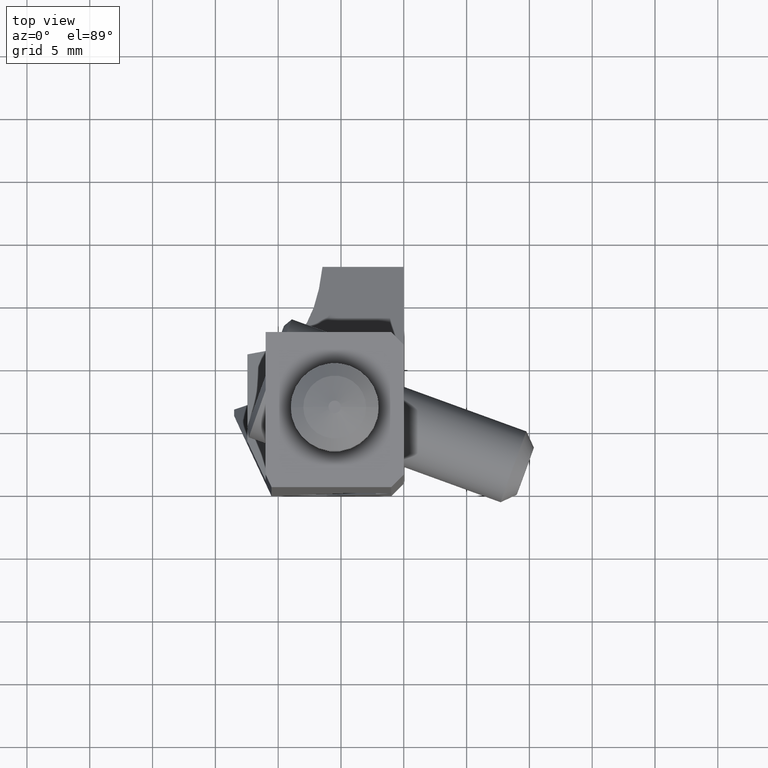
[diagram: clean part render]
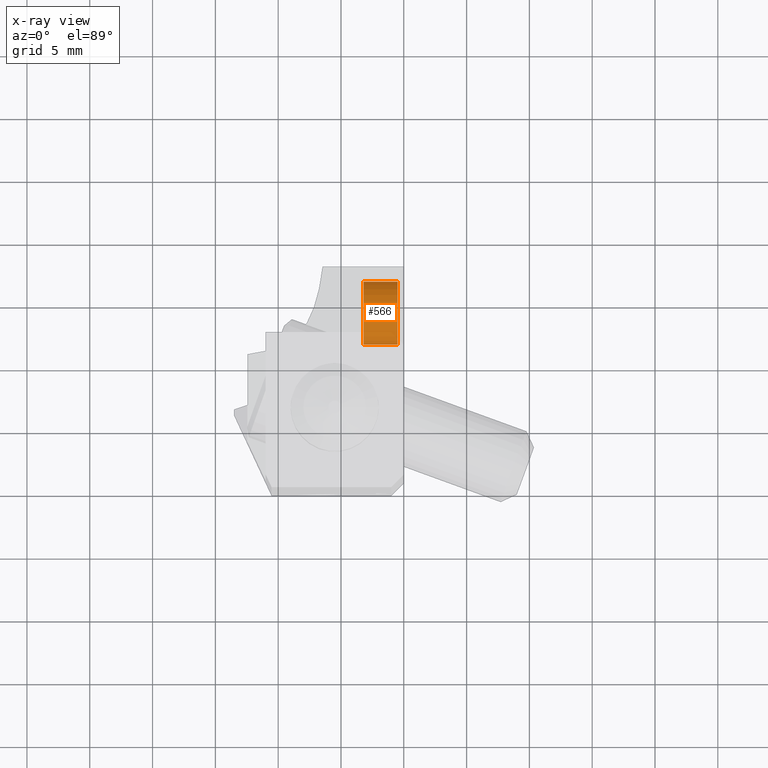
[diagram: x-ray — body ghosted, one internal face saturated and labeled with its STEP entity id]
A machine part, top view, then the same camera in x-ray: the body is ghosted and one INTERNAL B-rep face — a face not visible from any outside direction — is saturated and labeled: STEP entity #566.
In plain terms, the highlighted cylindrical surface (edge-blend (fillet) strip) has radius 2.5 mm, axis along (1, 0, 0).
Its self-contained STEP definition (entity closure, byte-faithful):
#199=CYLINDRICAL_SURFACE('',#4605,2.5);
#355=CIRCLE('',#4602,2.5);
#356=CIRCLE('',#4604,2.5);
#566=ADVANCED_FACE('',(#889),#199,.T.);
#889=FACE_OUTER_BOUND('',#1114,.T.);
#1114=EDGE_LOOP('',(#2262,#2263,#2264,#2265));
#2262=ORIENTED_EDGE('',*,*,#3312,.T.);
#2263=ORIENTED_EDGE('',*,*,#3311,.F.);
#2264=ORIENTED_EDGE('',*,*,#3313,.T.);
#2265=ORIENTED_EDGE('',*,*,#3314,.T.);
#2741=VERTEX_POINT('',#7615);
#2743=VERTEX_POINT('',#7619);
#2744=VERTEX_POINT('',#7625);
#2745=VERTEX_POINT('',#7627);
#3311=EDGE_CURVE('',#2743,#2741,#355,.T.);
#3312=EDGE_CURVE('',#2744,#2741,#3687,.T.);
#3313=EDGE_CURVE('',#2743,#2745,#3688,.T.);
#3314=EDGE_CURVE('',#2745,#2744,#356,.T.);
#3687=LINE('',#7624,#4040);
#3688=LINE('',#7626,#4041);
#4040=VECTOR('',#5755,1.);
#4041=VECTOR('',#5756,1.);
#4602=AXIS2_PLACEMENT_3D('',#7622,#5751,#5752);
#4604=AXIS2_PLACEMENT_3D('',#7628,#5757,#5758);
#4605=AXIS2_PLACEMENT_3D('',#7629,#5759,#5760);
#5751=DIRECTION('',(1.,0.,0.));
#5752=DIRECTION('',(0.,1.,1.039973662742E-10));
#5755=DIRECTION('',(1.,-1.907938827499E-13,1.992940791814E-11));
#5756=DIRECTION('',(-1.,-1.894780628689E-13,-4.636949260764E-12));
#5757=DIRECTION('',(1.,0.,0.));
#5758=DIRECTION('',(0.,1.,0.));
#5759=DIRECTION('',(1.,0.,0.));
#5760=DIRECTION('',(0.,1.,0.));
#7615=CARTESIAN_POINT('',(-0.4999999999966,12.,-37.60049190001));
#7619=CARTESIAN_POINT('',(-0.4999999999966,17.,-37.60049189985));
#7622=CARTESIAN_POINT('',(-0.5,14.5,-37.60049189996));
#7624=CARTESIAN_POINT('',(-3.200000000003,12.,-37.60049190006));
#7625=CARTESIAN_POINT('',(-3.2,12.,-37.60049189996));
#7626=CARTESIAN_POINT('',(-0.4999999999966,17.,-37.60049189985));
#7627=CARTESIAN_POINT('',(-3.2,17.,-37.60049189996));
#7628=CARTESIAN_POINT('',(-3.2,14.5,-37.60049189996));
#7629=CARTESIAN_POINT('',(-3.254,14.5,-37.60049189996));